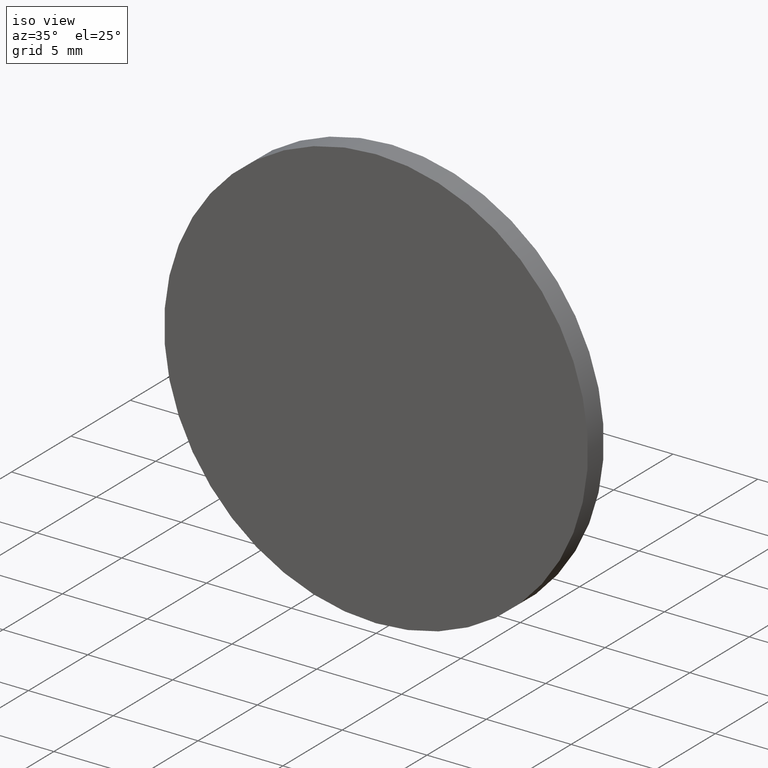
[diagram: clean part render]
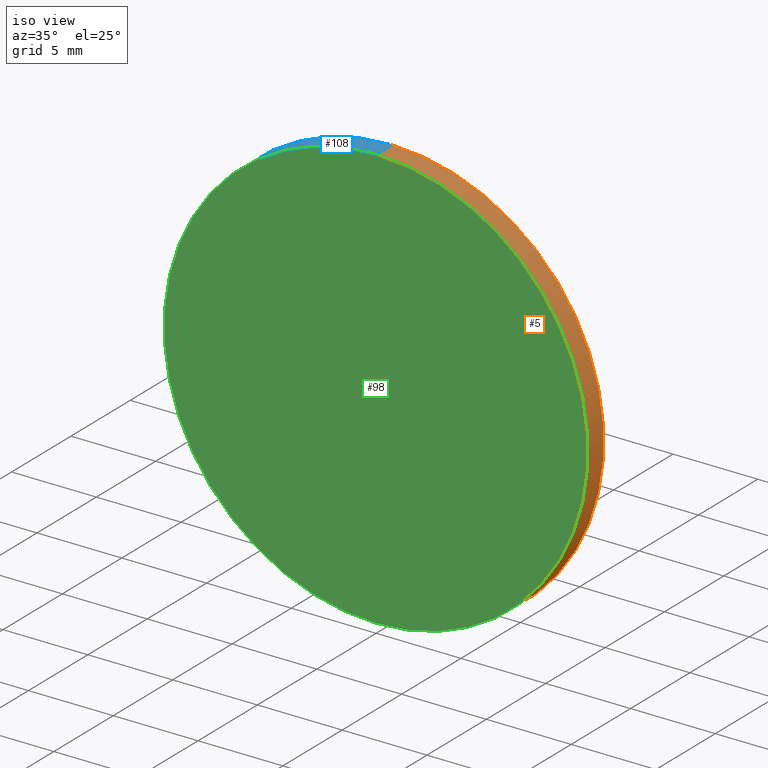
[diagram: same view with three faces highlighted in distinct colors, each labeled with its STEP entity id]
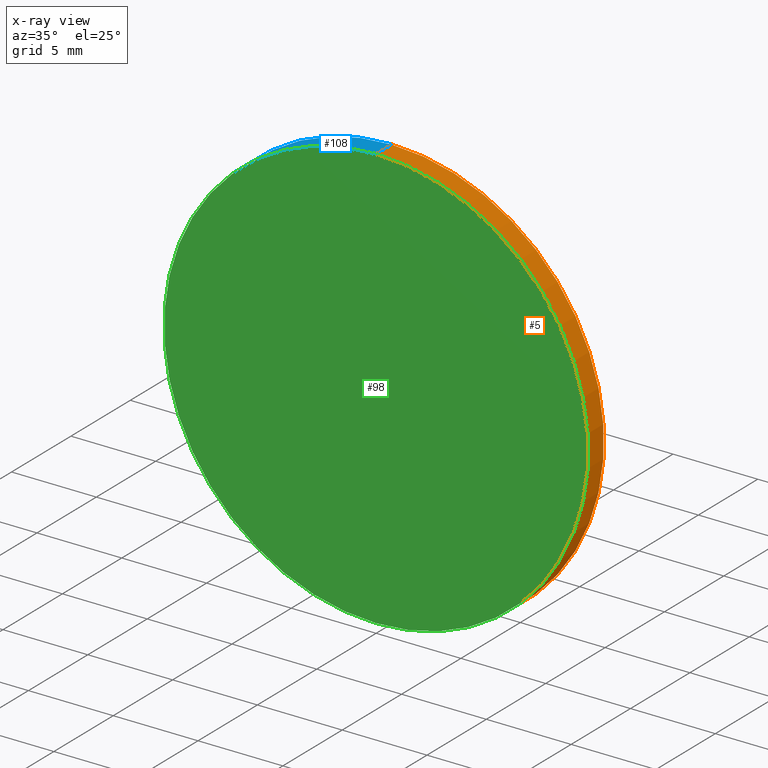
[diagram: x-ray of the same camera — body ghosted, the three highlighted faces saturated]
A machine part, iso view with three faces highlighted in distinct colors.
The next image is the same camera in x-ray (body ghosted, the three faces saturated) — at least one of them is partly hidden behind the body in this view.
Their STEP definitions:

[orange] entity #5 — the highlighted cylindrical surface (partial cylindrical patch) has radius 12.5 mm, axis along (-0, -1, -0).
#1 = VECTOR ( 'NONE', #100, 1000.000000000000000 ) ;
#5 = ADVANCED_FACE ( 'NONE', ( #24 ), #23, .T. ) ;
#7 = CARTESIAN_POINT ( 'NONE',  ( 0.0000000000000000000, 0.0000000000000000000, 0.0000000000000000000 ) ) ;
#14 = EDGE_LOOP ( 'NONE', ( #37, #84, #59, #39 ) ) ;
#19 = DIRECTION ( 'NONE',  ( -0.0000000000000000000, -1.000000000000000000, -0.0000000000000000000 ) ) ;
#23 = CYLINDRICAL_SURFACE ( 'NONE', #43, 12.50000000000000000 ) ;
#24 = FACE_OUTER_BOUND ( 'NONE', #14, .T. ) ;
#26 = EDGE_CURVE ( 'NONE', #49, #76, #114, .T. ) ;
#30 = DIRECTION ( 'NONE',  ( 0.0000000000000000000, 0.0000000000000000000, -1.000000000000000000 ) ) ;
#36 = EDGE_CURVE ( 'NONE', #119, #72, #115, .T. ) ;
#37 = ORIENTED_EDGE ( 'NONE', *, *, #26, .F. ) ;
#39 = ORIENTED_EDGE ( 'NONE', *, *, #106, .F. ) ;
#43 = AXIS2_PLACEMENT_3D ( 'NONE', #111, #19, #30 ) ;
#48 = CARTESIAN_POINT ( 'NONE',  ( 0.0000000000000000000, 1.330000000000000100, -12.50000000000000000 ) ) ;
#49 = VERTEX_POINT ( 'NONE', #53 ) ;
#51 = EDGE_CURVE ( 'NONE', #49, #119, #140, .T. ) ;
#53 = CARTESIAN_POINT ( 'NONE',  ( 1.530808498934191500E-015, 1.330000000000000100, 12.50000000000000000 ) ) ;
#59 = ORIENTED_EDGE ( 'NONE', *, *, #36, .T. ) ;
#63 = DIRECTION ( 'NONE',  ( 0.0000000000000000000, 0.0000000000000000000, 1.000000000000000000 ) ) ;
#65 = DIRECTION ( 'NONE',  ( 0.0000000000000000000, 0.0000000000000000000, 1.000000000000000000 ) ) ;
#68 = CARTESIAN_POINT ( 'NONE',  ( 1.530808498934191500E-015, 0.0000000000000000000, 12.50000000000000000 ) ) ;
#70 = CARTESIAN_POINT ( 'NONE',  ( 0.0000000000000000000, 0.0000000000000000000, -12.50000000000000000 ) ) ;
#72 = VERTEX_POINT ( 'NONE', #70 ) ;
#76 = VERTEX_POINT ( 'NONE', #48 ) ;
#77 = CARTESIAN_POINT ( 'NONE',  ( 0.0000000000000000000, 1.330000000000000100, 0.0000000000000000000 ) ) ;
#78 = DIRECTION ( 'NONE',  ( -0.0000000000000000000, -1.000000000000000000, -0.0000000000000000000 ) ) ;
#83 = AXIS2_PLACEMENT_3D ( 'NONE', #77, #134, #63 ) ;
#84 = ORIENTED_EDGE ( 'NONE', *, *, #51, .T. ) ;
#86 = LINE ( 'NONE', #88, #1 ) ;
#88 = CARTESIAN_POINT ( 'NONE',  ( 0.0000000000000000000, 1.330000000000000100, -12.50000000000000000 ) ) ;
#90 = VECTOR ( 'NONE', #78, 1000.000000000000000 ) ;
#97 = AXIS2_PLACEMENT_3D ( 'NONE', #7, #101, #65 ) ;
#100 = DIRECTION ( 'NONE',  ( -0.0000000000000000000, -1.000000000000000000, -0.0000000000000000000 ) ) ;
#101 = DIRECTION ( 'NONE',  ( 0.0000000000000000000, 1.000000000000000000, 0.0000000000000000000 ) ) ;
#106 = EDGE_CURVE ( 'NONE', #76, #72, #86, .T. ) ;
#110 = CARTESIAN_POINT ( 'NONE',  ( 1.530808498934191500E-015, 1.330000000000000100, 12.50000000000000000 ) ) ;
#111 = CARTESIAN_POINT ( 'NONE',  ( 0.0000000000000000000, 1.330000000000000100, 0.0000000000000000000 ) ) ;
#114 = CIRCLE ( 'NONE', #83, 12.50000000000000000 ) ;
#115 = CIRCLE ( 'NONE', #97, 12.50000000000000000 ) ;
#119 = VERTEX_POINT ( 'NONE', #68 ) ;
#134 = DIRECTION ( 'NONE',  ( 0.0000000000000000000, 1.000000000000000000, 0.0000000000000000000 ) ) ;
#140 = LINE ( 'NONE', #110, #90 ) ;

[blue] entity #108 — the highlighted cylindrical surface (partial cylindrical patch) has radius 12.5 mm, axis along (-0, -1, -0).
#1 = VECTOR ( 'NONE', #100, 1000.000000000000000 ) ;
#2 = EDGE_LOOP ( 'NONE', ( #135, #10, #47, #6 ) ) ;
#6 = ORIENTED_EDGE ( 'NONE', *, *, #57, .T. ) ;
#9 = DIRECTION ( 'NONE',  ( 0.0000000000000000000, 0.0000000000000000000, -1.000000000000000000 ) ) ;
#10 = ORIENTED_EDGE ( 'NONE', *, *, #67, .F. ) ;
#12 = AXIS2_PLACEMENT_3D ( 'NONE', #139, #113, #71 ) ;
#13 = FACE_OUTER_BOUND ( 'NONE', #2, .T. ) ;
#21 = DIRECTION ( 'NONE',  ( -0.0000000000000000000, -1.000000000000000000, -0.0000000000000000000 ) ) ;
#47 = ORIENTED_EDGE ( 'NONE', *, *, #106, .T. ) ;
#48 = CARTESIAN_POINT ( 'NONE',  ( 0.0000000000000000000, 1.330000000000000100, -12.50000000000000000 ) ) ;
#49 = VERTEX_POINT ( 'NONE', #53 ) ;
#51 = EDGE_CURVE ( 'NONE', #49, #119, #140, .T. ) ;
#53 = CARTESIAN_POINT ( 'NONE',  ( 1.530808498934191500E-015, 1.330000000000000100, 12.50000000000000000 ) ) ;
#56 = AXIS2_PLACEMENT_3D ( 'NONE', #121, #21, #9 ) ;
#57 = EDGE_CURVE ( 'NONE', #72, #119, #58, .T. ) ;
#58 = CIRCLE ( 'NONE', #12, 12.50000000000000000 ) ;
#67 = EDGE_CURVE ( 'NONE', #76, #49, #118, .T. ) ;
#68 = CARTESIAN_POINT ( 'NONE',  ( 1.530808498934191500E-015, 0.0000000000000000000, 12.50000000000000000 ) ) ;
#69 = DIRECTION ( 'NONE',  ( 0.0000000000000000000, 0.0000000000000000000, 1.000000000000000000 ) ) ;
#70 = CARTESIAN_POINT ( 'NONE',  ( 0.0000000000000000000, 0.0000000000000000000, -12.50000000000000000 ) ) ;
#71 = DIRECTION ( 'NONE',  ( 0.0000000000000000000, 0.0000000000000000000, 1.000000000000000000 ) ) ;
#72 = VERTEX_POINT ( 'NONE', #70 ) ;
#76 = VERTEX_POINT ( 'NONE', #48 ) ;
#78 = DIRECTION ( 'NONE',  ( -0.0000000000000000000, -1.000000000000000000, -0.0000000000000000000 ) ) ;
#86 = LINE ( 'NONE', #88, #1 ) ;
#88 = CARTESIAN_POINT ( 'NONE',  ( 0.0000000000000000000, 1.330000000000000100, -12.50000000000000000 ) ) ;
#90 = VECTOR ( 'NONE', #78, 1000.000000000000000 ) ;
#100 = DIRECTION ( 'NONE',  ( -0.0000000000000000000, -1.000000000000000000, -0.0000000000000000000 ) ) ;
#106 = EDGE_CURVE ( 'NONE', #76, #72, #86, .T. ) ;
#108 = ADVANCED_FACE ( 'NONE', ( #13 ), #126, .T. ) ;
#110 = CARTESIAN_POINT ( 'NONE',  ( 1.530808498934191500E-015, 1.330000000000000100, 12.50000000000000000 ) ) ;
#113 = DIRECTION ( 'NONE',  ( 0.0000000000000000000, 1.000000000000000000, 0.0000000000000000000 ) ) ;
#118 = CIRCLE ( 'NONE', #131, 12.50000000000000000 ) ;
#119 = VERTEX_POINT ( 'NONE', #68 ) ;
#121 = CARTESIAN_POINT ( 'NONE',  ( 0.0000000000000000000, 1.330000000000000100, 0.0000000000000000000 ) ) ;
#126 = CYLINDRICAL_SURFACE ( 'NONE', #56, 12.50000000000000000 ) ;
#129 = DIRECTION ( 'NONE',  ( 0.0000000000000000000, 1.000000000000000000, 0.0000000000000000000 ) ) ;
#130 = CARTESIAN_POINT ( 'NONE',  ( 0.0000000000000000000, 1.330000000000000100, 0.0000000000000000000 ) ) ;
#131 = AXIS2_PLACEMENT_3D ( 'NONE', #130, #129, #69 ) ;
#135 = ORIENTED_EDGE ( 'NONE', *, *, #51, .F. ) ;
#139 = CARTESIAN_POINT ( 'NONE',  ( 0.0000000000000000000, 0.0000000000000000000, 0.0000000000000000000 ) ) ;
#140 = LINE ( 'NONE', #110, #90 ) ;

[green] entity #98 — the highlighted planar face has unit normal (0, 1, 0).
#7 = CARTESIAN_POINT ( 'NONE',  ( 0.0000000000000000000, 0.0000000000000000000, 0.0000000000000000000 ) ) ;
#12 = AXIS2_PLACEMENT_3D ( 'NONE', #139, #113, #71 ) ;
#28 = ORIENTED_EDGE ( 'NONE', *, *, #36, .F. ) ;
#34 = DIRECTION ( 'NONE',  ( 0.0000000000000000000, -0.0000000000000000000, 1.000000000000000000 ) ) ;
#36 = EDGE_CURVE ( 'NONE', #119, #72, #115, .T. ) ;
#41 = AXIS2_PLACEMENT_3D ( 'NONE', #103, #45, #34 ) ;
#45 = DIRECTION ( 'NONE',  ( 0.0000000000000000000, 1.000000000000000000, 0.0000000000000000000 ) ) ;
#46 = FACE_OUTER_BOUND ( 'NONE', #93, .T. ) ;
#54 = PLANE ( 'NONE',  #41 ) ;
#57 = EDGE_CURVE ( 'NONE', #72, #119, #58, .T. ) ;
#58 = CIRCLE ( 'NONE', #12, 12.50000000000000000 ) ;
#65 = DIRECTION ( 'NONE',  ( 0.0000000000000000000, 0.0000000000000000000, 1.000000000000000000 ) ) ;
#68 = CARTESIAN_POINT ( 'NONE',  ( 1.530808498934191500E-015, 0.0000000000000000000, 12.50000000000000000 ) ) ;
#70 = CARTESIAN_POINT ( 'NONE',  ( 0.0000000000000000000, 0.0000000000000000000, -12.50000000000000000 ) ) ;
#71 = DIRECTION ( 'NONE',  ( 0.0000000000000000000, 0.0000000000000000000, 1.000000000000000000 ) ) ;
#72 = VERTEX_POINT ( 'NONE', #70 ) ;
#93 = EDGE_LOOP ( 'NONE', ( #104, #28 ) ) ;
#97 = AXIS2_PLACEMENT_3D ( 'NONE', #7, #101, #65 ) ;
#98 = ADVANCED_FACE ( 'NONE', ( #46 ), #54, .F. ) ;
#101 = DIRECTION ( 'NONE',  ( 0.0000000000000000000, 1.000000000000000000, 0.0000000000000000000 ) ) ;
#103 = CARTESIAN_POINT ( 'NONE',  ( 0.0000000000000000000, 0.0000000000000000000, 0.0000000000000000000 ) ) ;
#104 = ORIENTED_EDGE ( 'NONE', *, *, #57, .F. ) ;
#113 = DIRECTION ( 'NONE',  ( 0.0000000000000000000, 1.000000000000000000, 0.0000000000000000000 ) ) ;
#115 = CIRCLE ( 'NONE', #97, 12.50000000000000000 ) ;
#119 = VERTEX_POINT ( 'NONE', #68 ) ;
#139 = CARTESIAN_POINT ( 'NONE',  ( 0.0000000000000000000, 0.0000000000000000000, 0.0000000000000000000 ) ) ;